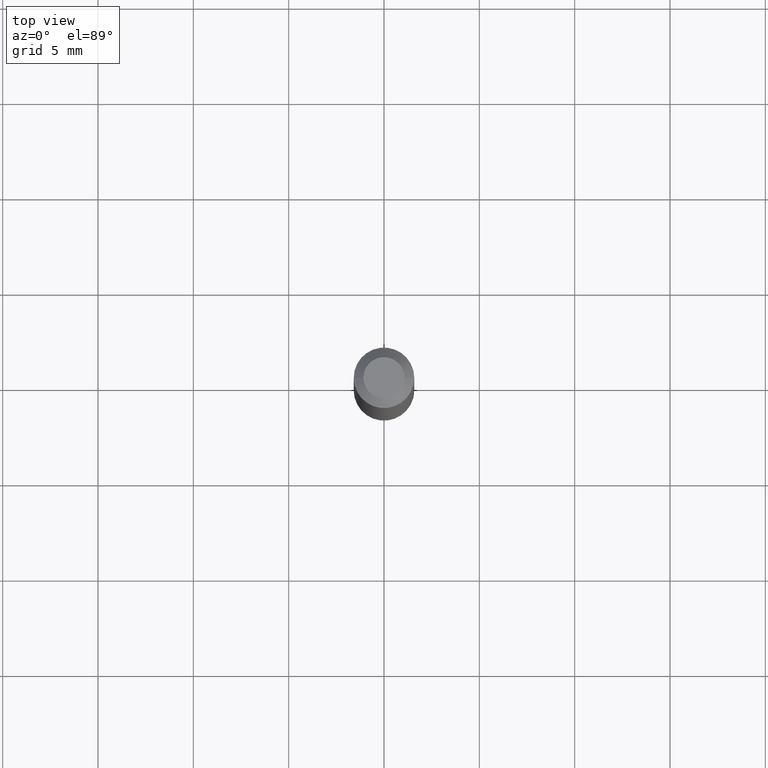
[diagram: clean part render]
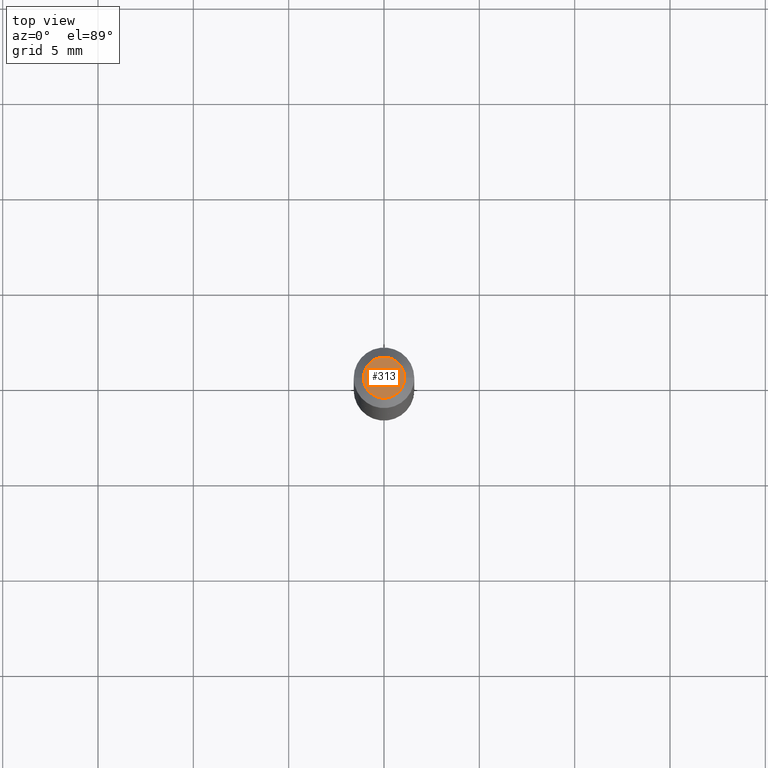
[diagram: same view with one face highlighted and labeled with its STEP entity id]
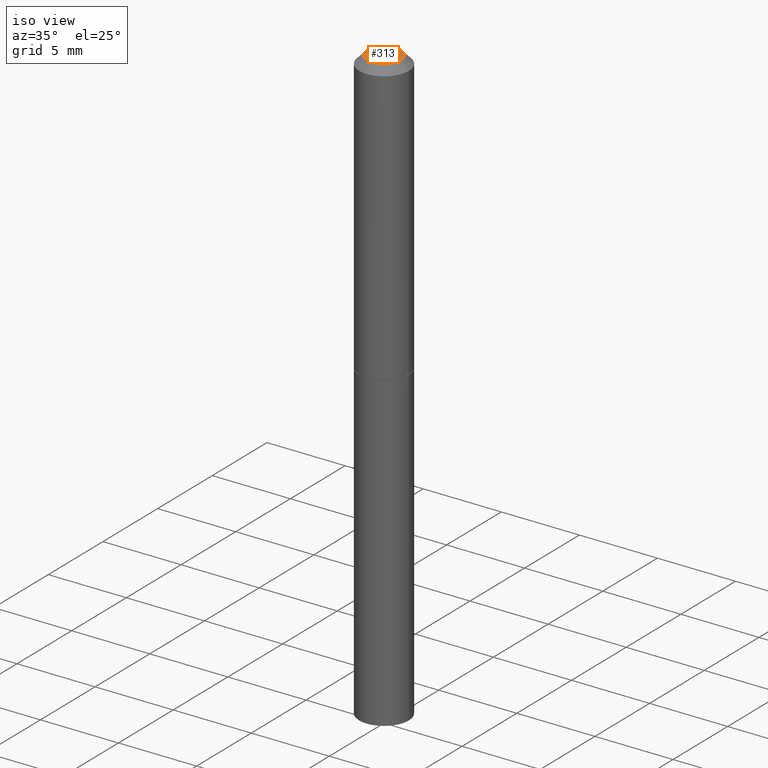
[diagram: same view with one face highlighted and labeled with its STEP entity id]
A machine part, top view. The second image highlights one B-rep face of the part: STEP entity #313.
A second angle (iso view) of the same face is appended — the face is thin or edge-on in the first view.
In plain terms, the highlighted planar face has unit normal (0, -0, -1).
Its self-contained STEP definition (entity closure, byte-faithful):
#9 = CARTESIAN_POINT ( 'NONE',  ( -0.04249999999999995448, 3.316907271900969686E-16, -5.549066237130754373E-17 ) ) ;
#30 = VERTEX_POINT ( 'NONE', #311 ) ;
#62 = EDGE_CURVE ( 'NONE', #30, #89, #312, .T. ) ;
#63 = CARTESIAN_POINT ( 'NONE',  ( 1.357006838635785746E-45, -1.937446121494581442E-31, -5.549066237130534971E-17 ) ) ;
#80 = AXIS2_PLACEMENT_3D ( 'NONE', #85, #122, #291 ) ;
#85 = CARTESIAN_POINT ( 'NONE',  ( 2.967759138016660098E-16, 0.04249999999999995448, -1.761332880864862221E-16 ) ) ;
#89 = VERTEX_POINT ( 'NONE', #9 ) ;
#93 = FACE_OUTER_BOUND ( 'NONE', #127, .T. ) ;
#101 = AXIS2_PLACEMENT_3D ( 'NONE', #360, #236, #191 ) ;
#122 = DIRECTION ( 'NONE',  ( 2.438088387897960049E-29, -3.491481338843145188E-15, -1.000000000000000000 ) ) ;
#127 = EDGE_LOOP ( 'NONE', ( #302, #136 ) ) ;
#136 = ORIENTED_EDGE ( 'NONE', *, *, #62, .T. ) ;
#168 = CIRCLE ( 'NONE', #249, 0.04249999999999995448 ) ;
#191 = DIRECTION ( 'NONE',  ( 1.000000000000000000, -6.982962677686267499E-15, 4.870577812114089772E-29 ) ) ;
#231 = PLANE ( 'NONE',  #80 ) ;
#234 = DIRECTION ( 'NONE',  ( 1.000000000000000000, -6.982962677686267499E-15, 4.870577812114089772E-29 ) ) ;
#236 = DIRECTION ( 'NONE',  ( -2.445468806185136597E-29, 3.491481338843145583E-15, 1.000000000000000000 ) ) ;
#249 = AXIS2_PLACEMENT_3D ( 'NONE', #63, #288, #234 ) ;
#288 = DIRECTION ( 'NONE',  ( -2.445468806185136597E-29, 3.491481338843145583E-15, 1.000000000000000000 ) ) ;
#291 = DIRECTION ( 'NONE',  ( -1.000000000000000000, 6.982962677686265922E-15, -4.876176775795935793E-29 ) ) ;
#302 = ORIENTED_EDGE ( 'NONE', *, *, #343, .T. ) ;
#311 = CARTESIAN_POINT ( 'NONE',  ( 0.04249999999999995448, -3.950909582714367445E-16, -5.549066237130292766E-17 ) ) ;
#312 = CIRCLE ( 'NONE', #101, 0.04249999999999995448 ) ;
#313 = ADVANCED_FACE ( 'NONE', ( #93 ), #231, .F. ) ;
#343 = EDGE_CURVE ( 'NONE', #89, #30, #168, .T. ) ;
#360 = CARTESIAN_POINT ( 'NONE',  ( 1.357006838635785746E-45, -1.937446121494581442E-31, -5.549066237130534971E-17 ) ) ;